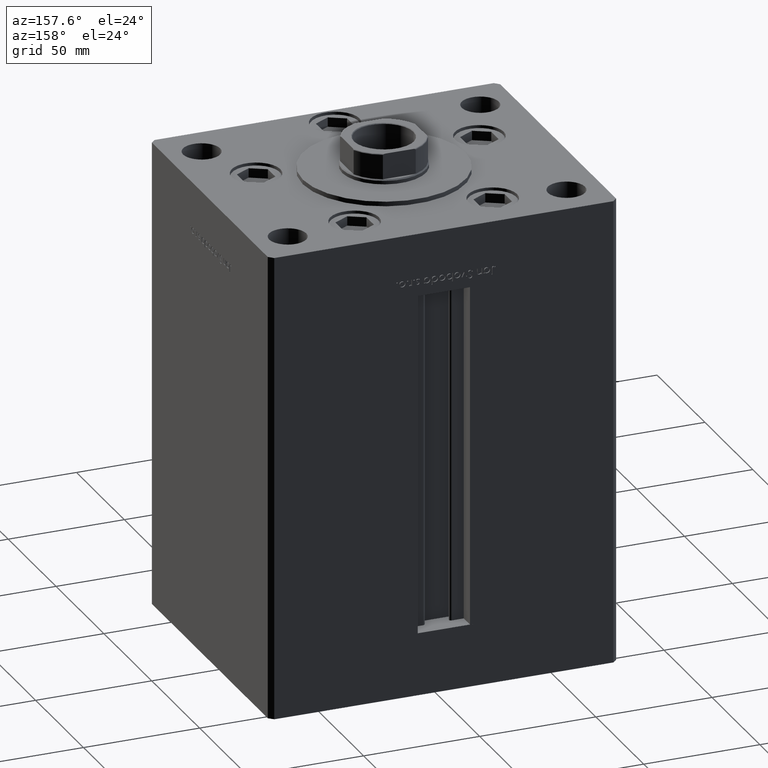
[diagram: clean part render]
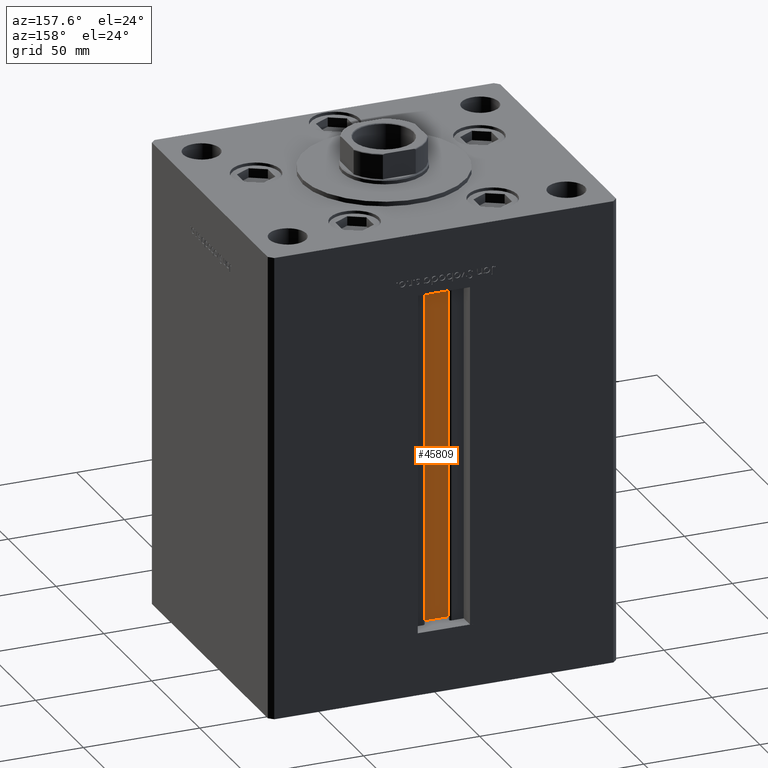
[diagram: same view with one face highlighted and labeled with its STEP entity id]
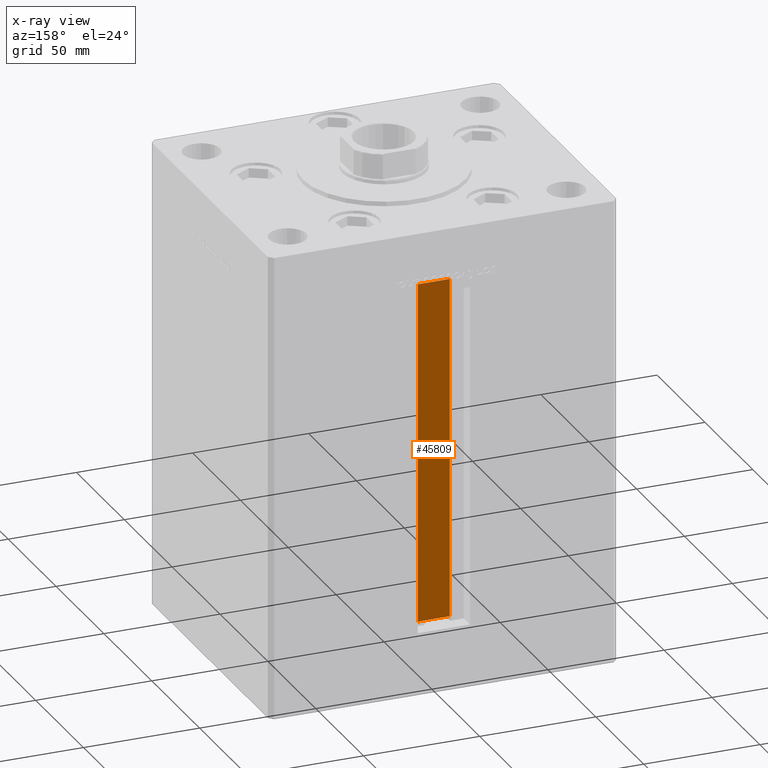
[diagram: x-ray of the same camera — body ghosted, the highlighted face saturated]
A machine part, auxiliary view. The second image highlights one B-rep face of the part: STEP entity #45809.
The next image is the same camera in x-ray: the body ghosted, the highlighted face saturated — about 0% of this face is hidden behind the body in this view.
In plain terms, the highlighted planar face has unit normal (0, -1, 0).
Its self-contained STEP definition (entity closure, byte-faithful):
#2066 = DIRECTION ( 'NONE',  ( 0.000000000000000000, 0.000000000000000000, -1.000000000000000000 ) ) ;
#4267 = LINE ( 'NONE', #36433, #30587 ) ;
#6890 = CARTESIAN_POINT ( 'NONE',  ( 6.876153656360466826, 51.99999999999986500, 147.0000000000000000 ) ) ;
#9505 = ORIENTED_EDGE ( 'NONE', *, *, #46481, .F. ) ;
#11580 = EDGE_CURVE ( 'NONE', #45168, #46931, #12485, .T. ) ;
#12485 = LINE ( 'NONE', #28788, #29413 ) ;
#13930 = CARTESIAN_POINT ( 'NONE',  ( 6.876153656360466826, 51.99999999999986500, 0.000000000000000000 ) ) ;
#15744 = CARTESIAN_POINT ( 'NONE',  ( 6.876153656360466826, 51.99999999999986500, 0.000000000000000000 ) ) ;
#18379 = PLANE ( 'NONE',  #19628 ) ;
#18674 = ORIENTED_EDGE ( 'NONE', *, *, #40878, .F. ) ;
#19628 = AXIS2_PLACEMENT_3D ( 'NONE', #13930, #47119, #2066 ) ;
#23267 = ORIENTED_EDGE ( 'NONE', *, *, #40868, .F. ) ;
#23364 = LINE ( 'NONE', #35765, #33114 ) ;
#27736 = ORIENTED_EDGE ( 'NONE', *, *, #11580, .T. ) ;
#28788 = CARTESIAN_POINT ( 'NONE',  ( -6.876153656360466826, 51.99999999999986500, 0.000000000000000000 ) ) ;
#29413 = VECTOR ( 'NONE', #49118, 1000.000000000000000 ) ;
#30587 = VECTOR ( 'NONE', #36698, 1000.000000000000000 ) ;
#30757 = FACE_OUTER_BOUND ( 'NONE', #31861, .T. ) ;
#31028 = DIRECTION ( 'NONE',  ( -0.000000000000000000, -0.000000000000000000, 1.000000000000000000 ) ) ;
#31861 = EDGE_LOOP ( 'NONE', ( #18674, #23267, #27736, #9505 ) ) ;
#32355 = CARTESIAN_POINT ( 'NONE',  ( 6.876153656360466826, 51.99999999999986500, 0.000000000000000000 ) ) ;
#33114 = VECTOR ( 'NONE', #51853, 1000.000000000000000 ) ;
#34464 = CARTESIAN_POINT ( 'NONE',  ( -6.876153656360466826, 51.99999999999986500, 147.0000000000000000 ) ) ;
#35765 = CARTESIAN_POINT ( 'NONE',  ( 6.876153656360466826, 51.99999999999986500, 0.000000000000000000 ) ) ;
#36433 = CARTESIAN_POINT ( 'NONE',  ( 0.000000000000000000, 51.99999999999986500, 147.0000000000000000 ) ) ;
#36698 = DIRECTION ( 'NONE',  ( -1.000000000000000000, 0.000000000000000000, 0.000000000000000000 ) ) ;
#36995 = VERTEX_POINT ( 'NONE', #6890 ) ;
#38950 = CARTESIAN_POINT ( 'NONE',  ( -6.876153656360466826, 51.99999999999986500, 0.000000000000000000 ) ) ;
#39011 = VECTOR ( 'NONE', #31028, 1000.000000000000000 ) ;
#40868 = EDGE_CURVE ( 'NONE', #45168, #51236, #23364, .T. ) ;
#40878 = EDGE_CURVE ( 'NONE', #51236, #36995, #43188, .T. ) ;
#43188 = LINE ( 'NONE', #15744, #39011 ) ;
#45168 = VERTEX_POINT ( 'NONE', #38950 ) ;
#45809 = ADVANCED_FACE ( 'NONE', ( #30757 ), #18379, .F. ) ;
#46481 = EDGE_CURVE ( 'NONE', #36995, #46931, #4267, .T. ) ;
#46931 = VERTEX_POINT ( 'NONE', #34464 ) ;
#47119 = DIRECTION ( 'NONE',  ( 0.000000000000000000, -1.000000000000000000, -0.000000000000000000 ) ) ;
#49118 = DIRECTION ( 'NONE',  ( -0.000000000000000000, -0.000000000000000000, 1.000000000000000000 ) ) ;
#51236 = VERTEX_POINT ( 'NONE', #32355 ) ;
#51853 = DIRECTION ( 'NONE',  ( 1.000000000000000000, -0.000000000000000000, -0.000000000000000000 ) ) ;